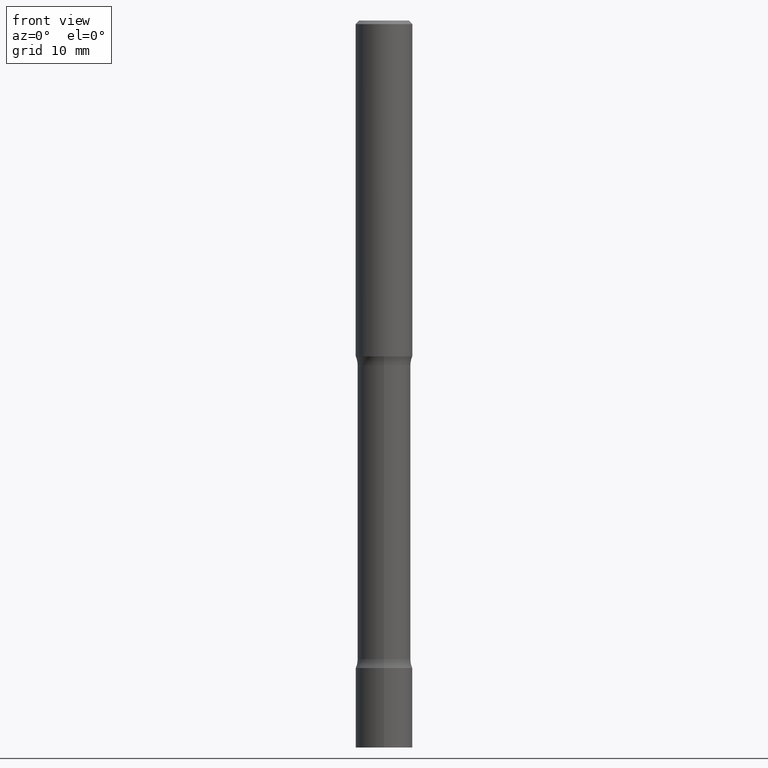
[diagram: clean part render]
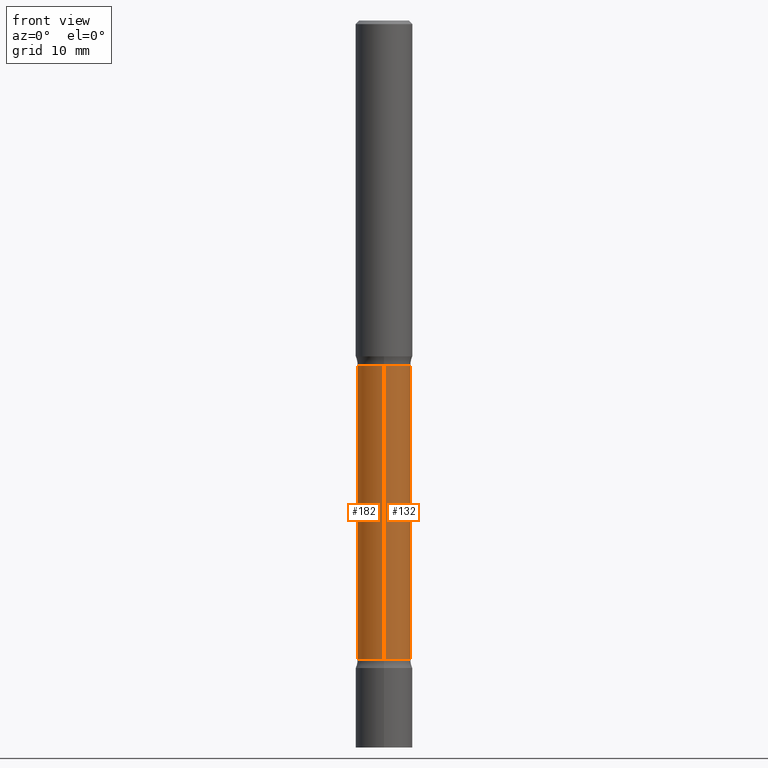
[diagram: same view with one multi-face feature highlighted, each face labeled with its STEP entity id]
A machine part, front view. The highlighted faces form ONE feature: a constant-radius fillet chain: 2 tangent blend faces with common blend radius 3.7148 mm. The faces share edges in the B-rep.
Their STEP definitions:
[1] entity #182 (Cylinder):
#11 = LINE ( 'NONE', #298, #338 ) ;
#31 = CIRCLE ( 'NONE', #75, 0.1462500000000003242 ) ;
#45 = EDGE_CURVE ( 'NONE', #256, #88, #11, .T. ) ;
#53 = CARTESIAN_POINT ( 'NONE',  ( 8.584077680876132565E-29, -1.227895773428642942E-14, -3.513510205144336318 ) ) ;
#54 = CARTESIAN_POINT ( 'NONE',  ( 4.324148429730863484E-29, -7.074231895616472148E-15, -1.896989794855663325 ) ) ;
#55 = EDGE_CURVE ( 'NONE', #57, #88, #469, .T. ) ;
#57 = VERTEX_POINT ( 'NONE', #403 ) ;
#64 = DIRECTION ( 'NONE',  ( 2.635246189303941165E-29, -3.219709324759167603E-15, -1.000000000000000000 ) ) ;
#75 = AXIS2_PLACEMENT_3D ( 'NONE', #54, #370, #209 ) ;
#88 = VERTEX_POINT ( 'NONE', #290 ) ;
#91 = VECTOR ( 'NONE', #64, 39.37007874015748143 ) ;
#94 = DIRECTION ( 'NONE',  ( 2.635246189303941165E-29, -3.219709324759167603E-15, -1.000000000000000000 ) ) ;
#102 = DIRECTION ( 'NONE',  ( 6.982962677686266711E-15, 1.000000000000000000, -3.735860504156253145E-15 ) ) ;
#122 = EDGE_CURVE ( 'NONE', #194, #57, #146, .T. ) ;
#129 = ORIENTED_EDGE ( 'NONE', *, *, #45, .T. ) ;
#131 = ORIENTED_EDGE ( 'NONE', *, *, #55, .F. ) ;
#133 = CYLINDRICAL_SURFACE ( 'NONE', #332, 0.1462500000000002409 ) ;
#146 = LINE ( 'NONE', #410, #91 ) ;
#175 = DIRECTION ( 'NONE',  ( 2.635246189303941165E-29, -3.219709324759167603E-15, -1.000000000000000000 ) ) ;
#182 = ADVANCED_FACE ( 'NONE', ( #369 ), #133, .T. ) ;
#194 = VERTEX_POINT ( 'NONE', #354 ) ;
#209 = DIRECTION ( 'NONE',  ( 6.982962677686267499E-15, 1.000000000000000000, -3.735860504156249201E-15 ) ) ;
#211 = CARTESIAN_POINT ( 'NONE',  ( 1.021258291611662024E-15, 0.1462499999999932743, -1.896989794855663769 ) ) ;
#256 = VERTEX_POINT ( 'NONE', #211 ) ;
#266 = AXIS2_PLACEMENT_3D ( 'NONE', #53, #94, #102 ) ;
#280 = DIRECTION ( 'NONE',  ( 2.635246189303941165E-29, -3.219709324759167603E-15, -1.000000000000000000 ) ) ;
#290 = CARTESIAN_POINT ( 'NONE',  ( 1.021258291611703439E-15, 0.1462499999999878897, -3.513510205144336762 ) ) ;
#298 = CARTESIAN_POINT ( 'NONE',  ( 1.021258291611716850E-15, 0.1462499999999863909, -4.000000000000000888 ) ) ;
#328 = ORIENTED_EDGE ( 'NONE', *, *, #122, .F. ) ;
#332 = AXIS2_PLACEMENT_3D ( 'NONE', #399, #280, #404 ) ;
#338 = VECTOR ( 'NONE', #175, 39.37007874015748143 ) ;
#351 = EDGE_CURVE ( 'NONE', #194, #256, #31, .T. ) ;
#354 = CARTESIAN_POINT ( 'NONE',  ( -1.037650322162904106E-15, -0.1462500000000074296, -1.896989794855662659 ) ) ;
#369 = FACE_OUTER_BOUND ( 'NONE', #483, .T. ) ;
#370 = DIRECTION ( 'NONE',  ( 2.635246189303941165E-29, -3.219709324759167603E-15, -1.000000000000000000 ) ) ;
#399 = CARTESIAN_POINT ( 'NONE',  ( 9.866098058904775575E-29, -1.384531346318338381E-14, -4.000000000000000000 ) ) ;
#403 = CARTESIAN_POINT ( 'NONE',  ( -1.037650322162858352E-15, -0.1462500000000124534, -3.513510205144335874 ) ) ;
#404 = DIRECTION ( 'NONE',  ( 6.982962677686266711E-15, 1.000000000000000000, -3.735860504156251567E-15 ) ) ;
#410 = CARTESIAN_POINT ( 'NONE',  ( -1.003347832173989445E-15, -0.1462500000000140910, -3.999999999999999556 ) ) ;
#469 = CIRCLE ( 'NONE', #266, 0.1462500000000001577 ) ;
#483 = EDGE_LOOP ( 'NONE', ( #328, #502, #129, #131 ) ) ;
#502 = ORIENTED_EDGE ( 'NONE', *, *, #351, .T. ) ;
[2] entity #132 (Cylinder):
#11 = LINE ( 'NONE', #298, #338 ) ;
#28 = CARTESIAN_POINT ( 'NONE',  ( 4.324148429730863484E-29, -7.074231895616472148E-15, -1.896989794855663325 ) ) ;
#30 = AXIS2_PLACEMENT_3D ( 'NONE', #245, #327, #142 ) ;
#41 = ORIENTED_EDGE ( 'NONE', *, *, #45, .F. ) ;
#45 = EDGE_CURVE ( 'NONE', #256, #88, #11, .T. ) ;
#47 = DIRECTION ( 'NONE',  ( 6.982962677686266711E-15, 1.000000000000000000, -3.735860504156251567E-15 ) ) ;
#48 = FACE_OUTER_BOUND ( 'NONE', #394, .T. ) ;
#57 = VERTEX_POINT ( 'NONE', #403 ) ;
#61 = CIRCLE ( 'NONE', #479, 0.1462500000000003242 ) ;
#64 = DIRECTION ( 'NONE',  ( 2.635246189303941165E-29, -3.219709324759167603E-15, -1.000000000000000000 ) ) ;
#66 = DIRECTION ( 'NONE',  ( 2.635246189303941165E-29, -3.219709324759167603E-15, -1.000000000000000000 ) ) ;
#84 = AXIS2_PLACEMENT_3D ( 'NONE', #395, #87, #47 ) ;
#87 = DIRECTION ( 'NONE',  ( 2.635246189303941165E-29, -3.219709324759167603E-15, -1.000000000000000000 ) ) ;
#88 = VERTEX_POINT ( 'NONE', #290 ) ;
#91 = VECTOR ( 'NONE', #64, 39.37007874015748143 ) ;
#122 = EDGE_CURVE ( 'NONE', #194, #57, #146, .T. ) ;
#132 = ADVANCED_FACE ( 'NONE', ( #48 ), #488, .T. ) ;
#142 = DIRECTION ( 'NONE',  ( 6.982962677686266711E-15, 1.000000000000000000, -3.735860504156253145E-15 ) ) ;
#146 = LINE ( 'NONE', #410, #91 ) ;
#156 = CIRCLE ( 'NONE', #30, 0.1462500000000001577 ) ;
#175 = DIRECTION ( 'NONE',  ( 2.635246189303941165E-29, -3.219709324759167603E-15, -1.000000000000000000 ) ) ;
#194 = VERTEX_POINT ( 'NONE', #354 ) ;
#211 = CARTESIAN_POINT ( 'NONE',  ( 1.021258291611662024E-15, 0.1462499999999932743, -1.896989794855663769 ) ) ;
#231 = ORIENTED_EDGE ( 'NONE', *, *, #498, .T. ) ;
#245 = CARTESIAN_POINT ( 'NONE',  ( 8.584077680876132565E-29, -1.227895773428642942E-14, -3.513510205144336318 ) ) ;
#256 = VERTEX_POINT ( 'NONE', #211 ) ;
#270 = EDGE_CURVE ( 'NONE', #88, #57, #156, .T. ) ;
#290 = CARTESIAN_POINT ( 'NONE',  ( 1.021258291611703439E-15, 0.1462499999999878897, -3.513510205144336762 ) ) ;
#298 = CARTESIAN_POINT ( 'NONE',  ( 1.021258291611716850E-15, 0.1462499999999863909, -4.000000000000000888 ) ) ;
#324 = ORIENTED_EDGE ( 'NONE', *, *, #122, .T. ) ;
#327 = DIRECTION ( 'NONE',  ( 2.635246189303941165E-29, -3.219709324759167603E-15, -1.000000000000000000 ) ) ;
#338 = VECTOR ( 'NONE', #175, 39.37007874015748143 ) ;
#354 = CARTESIAN_POINT ( 'NONE',  ( -1.037650322162904106E-15, -0.1462500000000074296, -1.896989794855662659 ) ) ;
#394 = EDGE_LOOP ( 'NONE', ( #231, #324, #429, #41 ) ) ;
#395 = CARTESIAN_POINT ( 'NONE',  ( 9.866098058904775575E-29, -1.384531346318338381E-14, -4.000000000000000000 ) ) ;
#403 = CARTESIAN_POINT ( 'NONE',  ( -1.037650322162858352E-15, -0.1462500000000124534, -3.513510205144335874 ) ) ;
#410 = CARTESIAN_POINT ( 'NONE',  ( -1.003347832173989445E-15, -0.1462500000000140910, -3.999999999999999556 ) ) ;
#429 = ORIENTED_EDGE ( 'NONE', *, *, #270, .F. ) ;
#463 = DIRECTION ( 'NONE',  ( 6.982962677686267499E-15, 1.000000000000000000, -3.735860504156249201E-15 ) ) ;
#479 = AXIS2_PLACEMENT_3D ( 'NONE', #28, #66, #463 ) ;
#488 = CYLINDRICAL_SURFACE ( 'NONE', #84, 0.1462500000000002409 ) ;
#498 = EDGE_CURVE ( 'NONE', #256, #194, #61, .T. ) ;